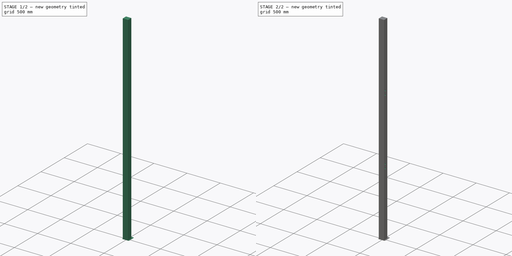
[diagram: build sequence overview — one tinted view per stage of 2, left to right]
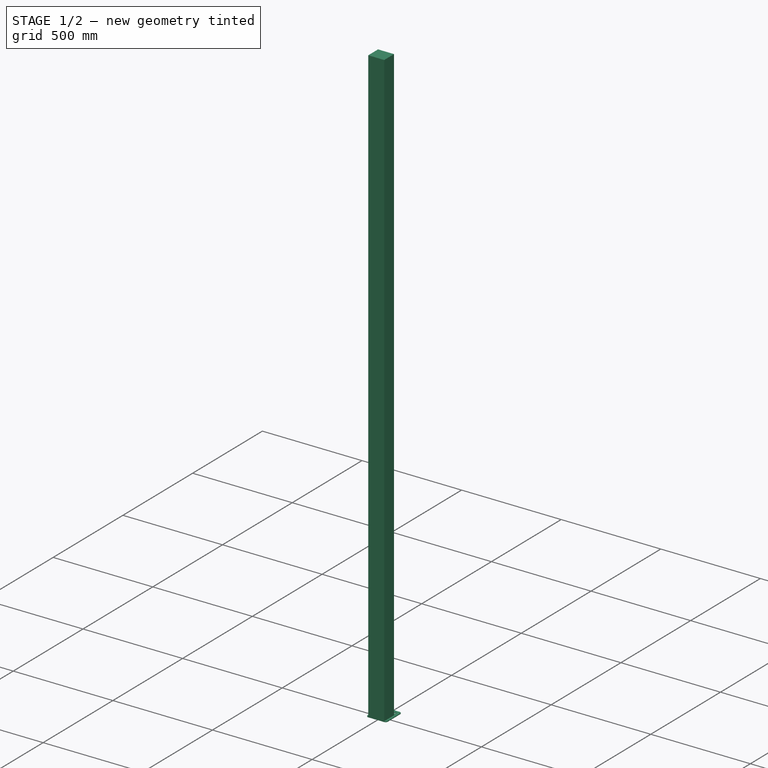
[diagram: stage 1 of 2 — iso view after this stage's code; geometry added in this stage tinted green]
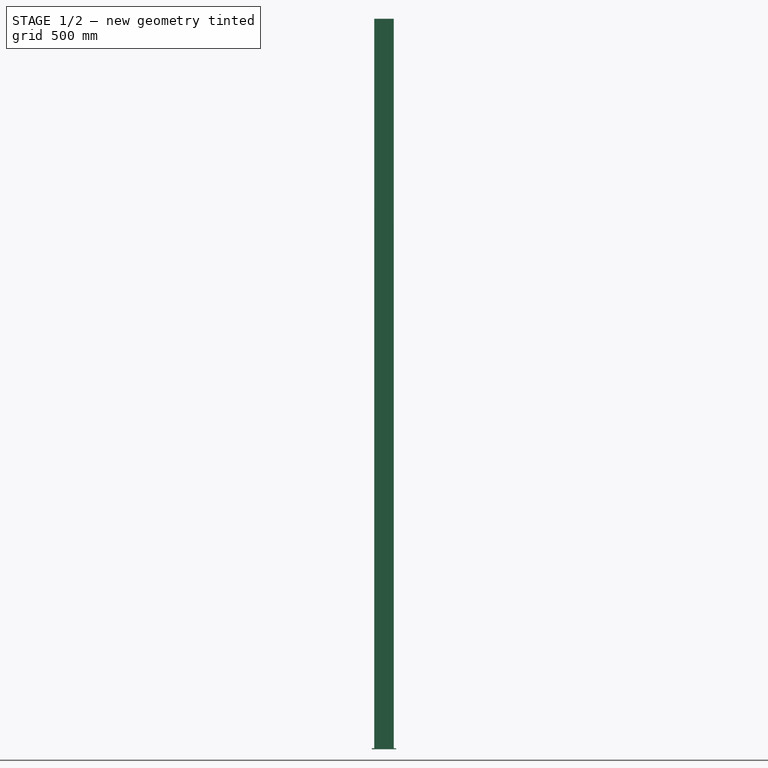
[diagram: stage 1 of 2 — front view after this stage's code; geometry added in this stage tinted green]
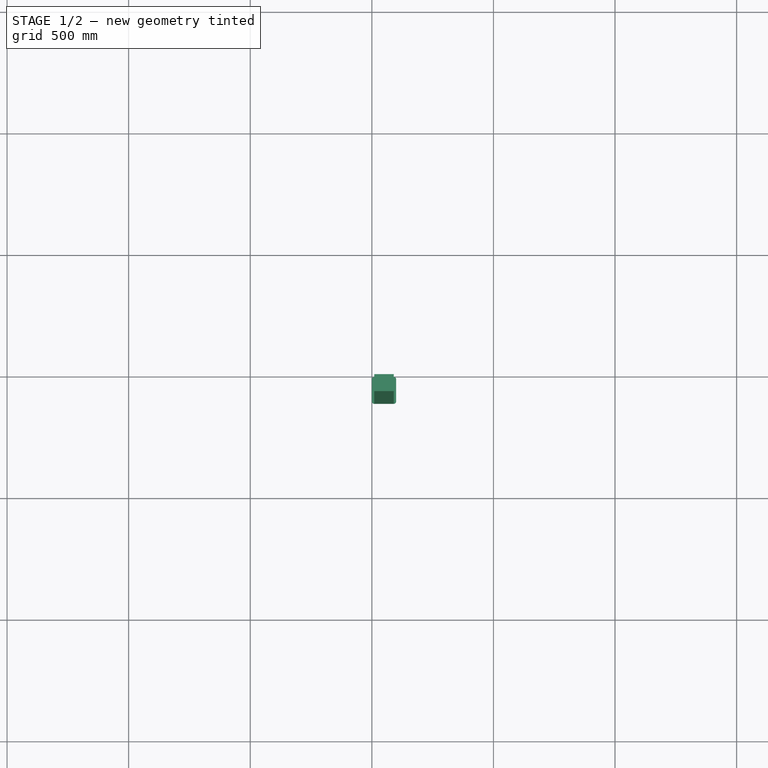
[diagram: stage 1 of 2 — top view after this stage's code; geometry added in this stage tinted green]
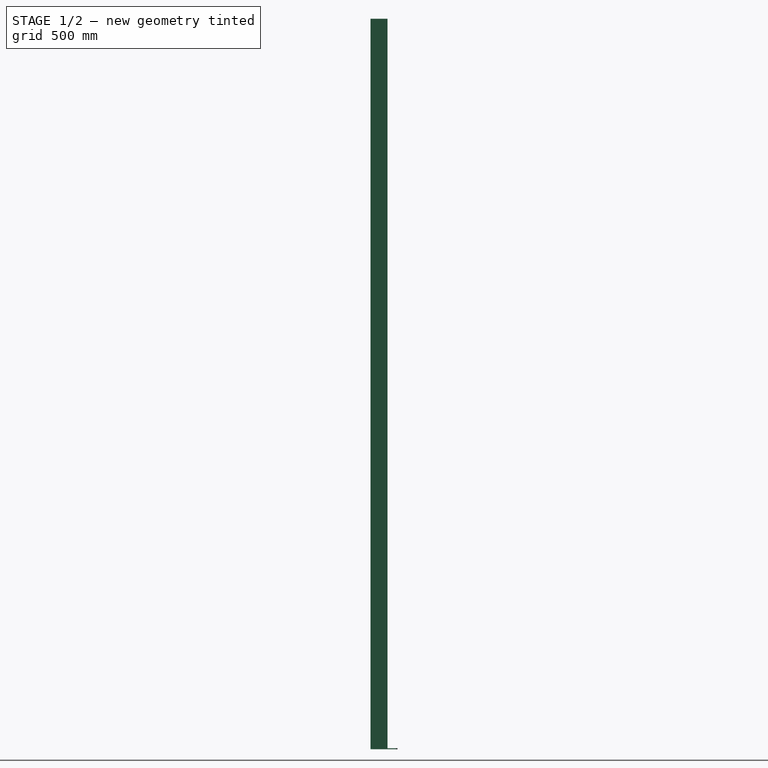
[diagram: stage 1 of 2 — right view after this stage's code; geometry added in this stage tinted green]
FCSTD DOCUMENT  (FreeCAD 0.21R33668 +26 (Git))
Label: stand_with_footplate
License: All rights reserved
LicenseURL: https://en.wikipedia.org/wiki/All_rights_reserved
objects: Sketcher::SketchObject×5, PartDesign::Pad×2, PartDesign::Pocket×2, PartDesign::Body×1
note: 14 computed .brp shape members not serialized (recipe doc carries the construction recipe); baked Part::Feature solids carry a one-line shape summary decoded from their .brp

FEATURE [Sketcher::SketchObject] Sketch
  FullyConstrained = true
  MapMode = 5
  Support = -> [XY_Plane]
  sketch-geometry (15):
    g0: LineSegment StartX=10 StartY=-2.913e-13 StartZ=0 EndX=90 EndY=-2.913e-13 EndZ=0
    g1: LineSegment StartX=100 StartY=-10 StartZ=0 EndX=100 EndY=-101 EndZ=0
    g2: LineSegment StartX=90 StartY=-111 StartZ=0 EndX=10 EndY=-111 EndZ=0
    g3: LineSegment StartX=0 StartY=-101 StartZ=0 EndX=0 EndY=-10 EndZ=0
    g4: ArcOfCircle CenterX=10 CenterY=-10 CenterZ=0 NormalX=0 NormalY=0 NormalZ=1 AngleXU=0 Radius=10 StartAngle=1.5708 EndAngle=3.14159
    g5: GeomPoint X=0 Y=0 Z=0
    g6: ArcOfCircle CenterX=10 CenterY=-101 CenterZ=0 NormalX=0 NormalY=0 NormalZ=1 AngleXU=0 Radius=10 StartAngle=3.14159 EndAngle=4.71239
    g7: GeomPoint X=0 Y=-111 Z=0
    g8: ArcOfCircle CenterX=90 CenterY=-101 CenterZ=0 NormalX=0 NormalY=0 NormalZ=1 AngleXU=0 Radius=10 StartAngle=4.71239 EndAngle=6.28319
    g9: GeomPoint X=100 Y=-111 Z=0
    g10: ArcOfCircle CenterX=90 CenterY=-10 CenterZ=0 NormalX=0 NormalY=0 NormalZ=1 AngleXU=0 Radius=10 StartAngle=0 EndAngle=1.5708
    g11: GeomPoint X=100 Y=0 Z=0
    g12: Circle CenterX=20 CenterY=-20 CenterZ=0 NormalX=0 NormalY=0 NormalZ=1 AngleXU=0 Radius=6
    g13: Circle CenterX=50 CenterY=-20 CenterZ=0 NormalX=0 NormalY=0 NormalZ=1 AngleXU=0 Radius=6
    g14: Circle CenterX=80 CenterY=-20 CenterZ=0 NormalX=0 NormalY=0 NormalZ=1 AngleXU=0 Radius=6
  constraints (36):
    c: Horizontal(g0)
    c: Horizontal(g2)
    c: Vertical(g1)
    c: Vertical(g3)
    c: Coincident(g5,g-1)
    c: PointOnObject(g5,g0)
    c: PointOnObject(g5,g3)
    c: Tangent(g0,g4) = 1.5708
    c: Tangent(g3,g4) = 1.5708
    c: PointOnObject(g7,g3)
    c: PointOnObject(g7,g2)
    c: Tangent(g3,g6) = 1.5708
    c: Tangent(g2,g6) = 1.5708
    c: PointOnObject(g9,g2)
    c: PointOnObject(g9,g1)
    c: Tangent(g2,g8) = 1.5708
    c: Tangent(g1,g8) = 1.5708
    c: PointOnObject(g11,g1)
    c: PointOnObject(g11,g0)
    c: Tangent(g1,g10) = 1.5708
    c: Tangent(g0,g10) = 1.5708
    c: Equal(g4,g6)
    c: Equal(g4,g8)
    c: Equal(g4,g10)
    c: Radius(g4) = 10
    c: Distance(g5,g11) = 100
    c: Distance(g5,g7) = 111
    c: Equal(g12,g13)
    c: Equal(g12,g14)
    c: Diameter(g12) = 12
    c: Distance(g12,g0) = 20
    c: Distance(g13,g0) = 20
    c: Distance(g14,g0) = 20
    c: Distance(g14,g3) = 80
    c: Distance(g13,g3) = 50
    c: Distance(g12,g3) = 20
FEATURE [PartDesign::Pad] Pad
  Direction = (0,0,1)
  Length = 4
  Length2 = 10
  Profile = -> Sketch
  ReferenceAxis = -> Sketch [N_Axis]
  Type = 0
FEATURE [Sketcher::SketchObject] Sketch001
  ExternalGeometry = -> [Pad]
  FullyConstrained = true
  MapMode = 5
  Placement = pos=(0,0,4) rot=(0,0,1;0rad)
  Support = -> [Pad]
  sketch-geometry (4):
    g0: LineSegment StartX=10 StartY=-41 StartZ=0 EndX=90 EndY=-41 EndZ=0
    g1: LineSegment StartX=90 StartY=-41 StartZ=0 EndX=90 EndY=-111 EndZ=0
    g2: LineSegment StartX=90 StartY=-111 StartZ=0 EndX=10 EndY=-111 EndZ=0
    g3: LineSegment StartX=10 StartY=-111 StartZ=0 EndX=10 EndY=-41 EndZ=0
  constraints (12):
    c: Coincident(g0,g1)
    c: Coincident(g1,g2)
    c: Coincident(g2,g3)
    c: Coincident(g3,g0)
    c: Horizontal(g0)
    c: Horizontal(g2)
    c: Vertical(g1)
    c: Vertical(g3)
    c: Distance(g1,g-3) = 10
    c: DistanceY(g-1,g0) = -41
    c: Distance(g3) = 70
    c: Distance(g0) = 80
FEATURE [PartDesign::Pad] Pad001
  BaseFeature = -> Pad
  Direction = (0,0,1)
  Length = 3000
  Length2 = 10
  Profile = -> Sketch001
  ReferenceAxis = -> Sketch001 [N_Axis]
  Type = 0
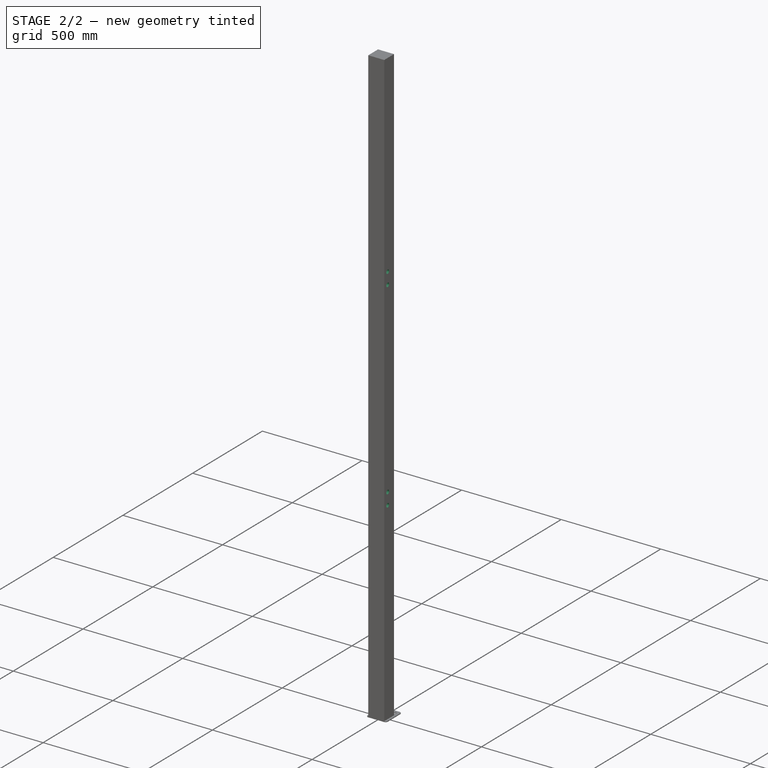
[diagram: stage 2 of 2 — iso view after this stage's code; geometry added in this stage tinted green]
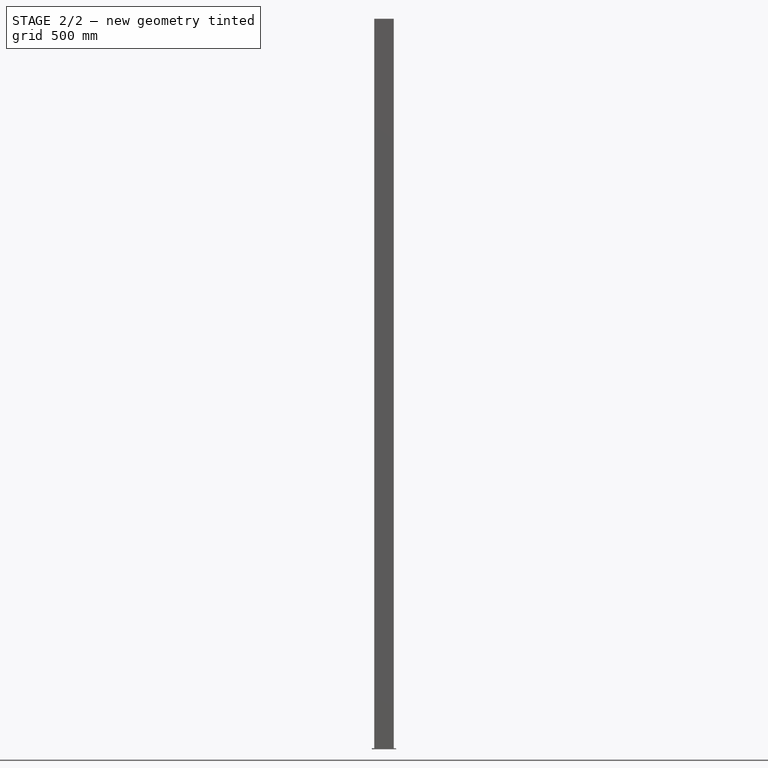
[diagram: stage 2 of 2 — front view after this stage's code; geometry added in this stage tinted green]
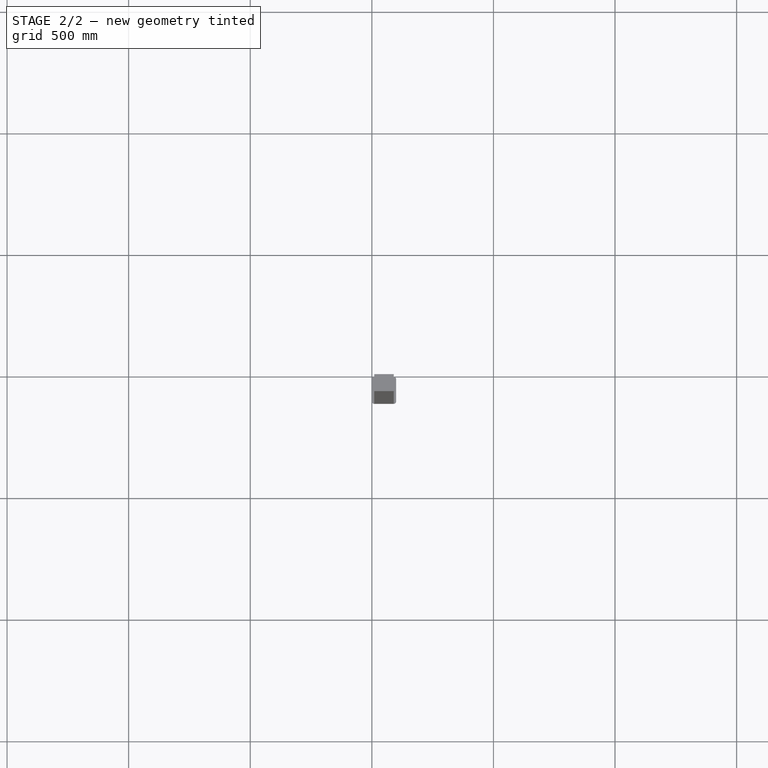
[diagram: stage 2 of 2 — top view after this stage's code; geometry added in this stage tinted green]
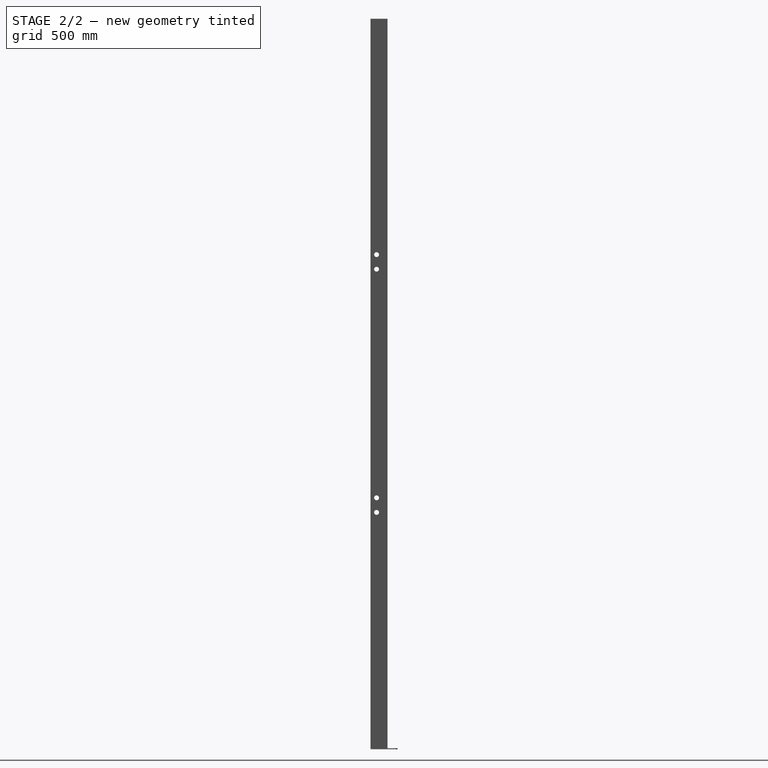
[diagram: stage 2 of 2 — right view after this stage's code; geometry added in this stage tinted green]
FEATURE [Sketcher::SketchObject] Sketch002
  ExternalGeometry = -> [Pad001]
  FullyConstrained = true
  MapMode = 5
  Placement = pos=(90,0,0) rot=(0.57735,0.57735,0.57735;2.0944rad)
  Support = -> [Pad001]
  sketch-geometry (4):
    g0: Circle CenterX=-86 CenterY=1034 CenterZ=0 NormalX=0 NormalY=0 NormalZ=1 AngleXU=0 Radius=10
    g1: Circle CenterX=-86 CenterY=974 CenterZ=0 NormalX=0 NormalY=0 NormalZ=1 AngleXU=0 Radius=10
    g2: Circle CenterX=-86 CenterY=2034 CenterZ=0 NormalX=0 NormalY=0 NormalZ=1 AngleXU=0 Radius=10
    g3: Circle CenterX=-86 CenterY=1974 CenterZ=0 NormalX=0 NormalY=0 NormalZ=1 AngleXU=0 Radius=10
  constraints (12):
    c: Distance(g0,g-7) = 1030
    c: Distance(g1,g-4) = 25
    c: Distance(g0,g-4) = 25
    c: Equal(g1,g0)
    c: Diameter(g1) = 20
    c: Distance(g0,g1) = 60
    c: Distance(g2,g-4) = 25
    c: Distance(g3,g-4) = 25
    c: Distance(g3,g2) = 60
    c: Equal(g2,g3)
    c: Diameter(g2) = 20
    c: Distance(g2,g1) = 1060
FEATURE [PartDesign::Pocket] Pocket
  BaseFeature = -> Pad001
  Direction = (-1,0,0)
  Length = 80
  Length2 = 5
  Profile = -> Sketch002
  ReferenceAxis = -> Sketch002 [N_Axis]
  Type = 0
FEATURE [Sketcher::SketchObject] Sketch003
  ExternalGeometry = -> [Pocket]
  FullyConstrained = true
  MapMode = 5
  Placement = pos=(10,0,0) rot=(0.57735,-0.57735,-0.57735;2.0944rad)
  Support = -> [Pocket]
  sketch-geometry (4):
    g0: Circle CenterX=66 CenterY=1034 CenterZ=0 NormalX=0 NormalY=0 NormalZ=1 AngleXU=0 Radius=10
    g1: Circle CenterX=66 CenterY=974 CenterZ=0 NormalX=0 NormalY=0 NormalZ=1 AngleXU=0 Radius=10
    g2: Circle CenterX=66 CenterY=2034 CenterZ=0 NormalX=0 NormalY=0 NormalZ=1 AngleXU=0 Radius=10
    g3: Circle CenterX=66 CenterY=1974 CenterZ=0 NormalX=0 NormalY=0 NormalZ=1 AngleXU=0 Radius=10
  constraints (12):
    c: Distance(g0,g-5) = 25
    c: Distance(g1,g-5) = 25
    c: Distance(g0,g-3) = 1030
    c: Distance(g0,g1) = 60
    c: Equal(g1,g0)
    c: Diameter(g1) = 20
    c: Distance(g2,g-5) = 25
    c: Distance(g3,g-5) = 25
    c: Distance(g2,g3) = 60
    c: Distance(g2,g1) = 1060
    c: Equal(g3,g2)
    c: Diameter(g3) = 20
FEATURE [Sketcher::SketchObject] Sketch004
  ExternalGeometry = -> [Pocket]
  FullyConstrained = true
  MapMode = 5
  Placement = pos=(0,-41,0) rot=(0,0.707107,0.707107;3.14159rad)
  Support = -> [Pocket]
  sketch-geometry (8):
    g0: LineSegment StartX=-50 StartY=3004 StartZ=0 EndX=-50 EndY=4 EndZ=0
    g1: Circle CenterX=-50 CenterY=214 CenterZ=0 NormalX=0 NormalY=0 NormalZ=1 AngleXU=0 Radius=5
    g2: Circle CenterX=-50 CenterY=634 CenterZ=0 NormalX=0 NormalY=0 NormalZ=1 AngleXU=0 Radius=5
    g3: Circle CenterX=-50 CenterY=1054 CenterZ=0 NormalX=0 NormalY=0 NormalZ=1 AngleXU=0 Radius=5
    g4: Circle CenterX=-50 CenterY=1474 CenterZ=0 NormalX=0 NormalY=0 NormalZ=1 AngleXU=0 Radius=5
    g5: Circle CenterX=-50 CenterY=1894 CenterZ=0 NormalX=0 NormalY=0 NormalZ=1 AngleXU=0 Radius=5
    g6: Circle CenterX=-50 CenterY=2314 CenterZ=0 NormalX=0 NormalY=0 NormalZ=1 AngleXU=0 Radius=5
    g7: Circle CenterX=-50 CenterY=2734 CenterZ=0 NormalX=0 NormalY=0 NormalZ=1 AngleXU=0 Radius=5
  constraints (20):
    c: PointOnObject(g0,g-6)
    c: PointOnObject(g0,g-3)
    c: Vertical(g0)
    c: PointOnObject(g1,g0)
    c: PointOnObject(g2,g0)
    c: PointOnObject(g3,g0)
    c: PointOnObject(g4,g0)
    c: PointOnObject(g5,g0)
    c: PointOnObject(g6,g0)
    c: PointOnObject(g7,g0)
    c: Equal(g1, g2-g7) x6
    c: Radius(g1) = 5
    c: Distance(g1,g-3) = 210
    c: Distance(g1,g2) = 420
    c: Distance(g2,g3) = 420
    c: DistanceY(g3,g4) = 420
    c: Distance(g4,g5) = 420
    c: Distance(g5,g6) = 420
    c: Distance(g7,g6) = 420
    c: Distance(g0,g-4) = 40
FEATURE [PartDesign::Pocket] Pocket001
  BaseFeature = -> Pocket
  Direction = (0,-1,2e-16)
  Length = 30
  Length2 = 5
  Profile = -> Sketch004
  ReferenceAxis = -> Sketch004 [N_Axis]
  Type = 0
FEATURE [PartDesign::Body] Body
  Group = -> [Sketch,Pad,Sketch001,Pad001,Sketch002,Pocket,Sketch003,Sketch004,Pocket001]
  Origin = -> Origin
  Tip = -> Pocket001
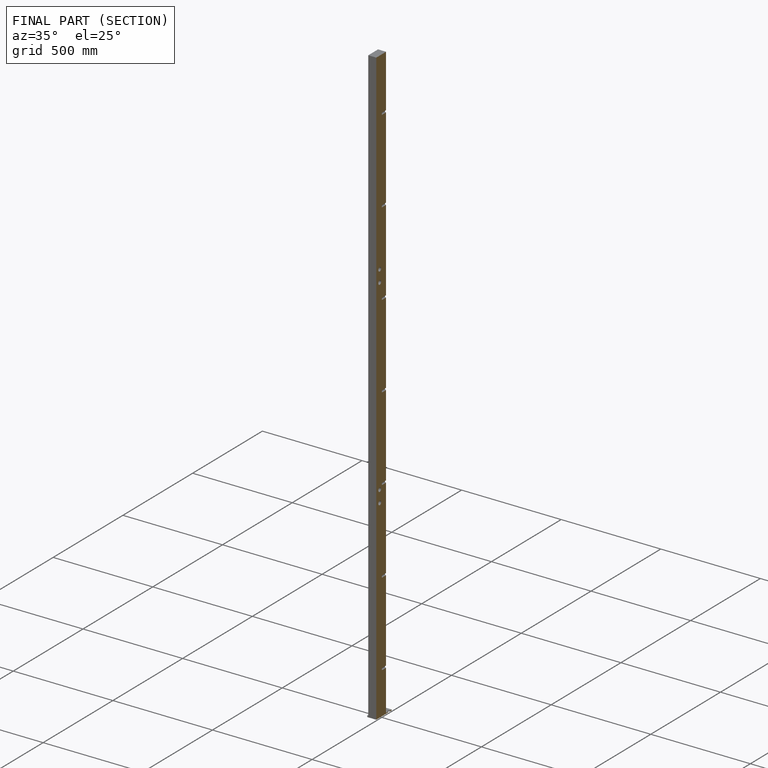
[diagram: finished part — half-section view (interior)]
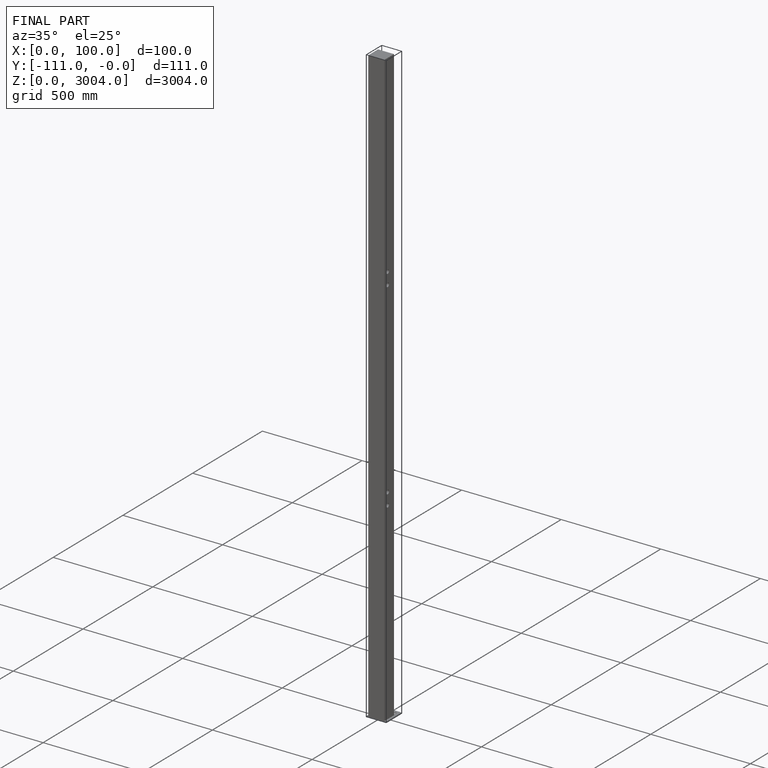
[diagram: finished part — iso view with bounding-box wireframe]
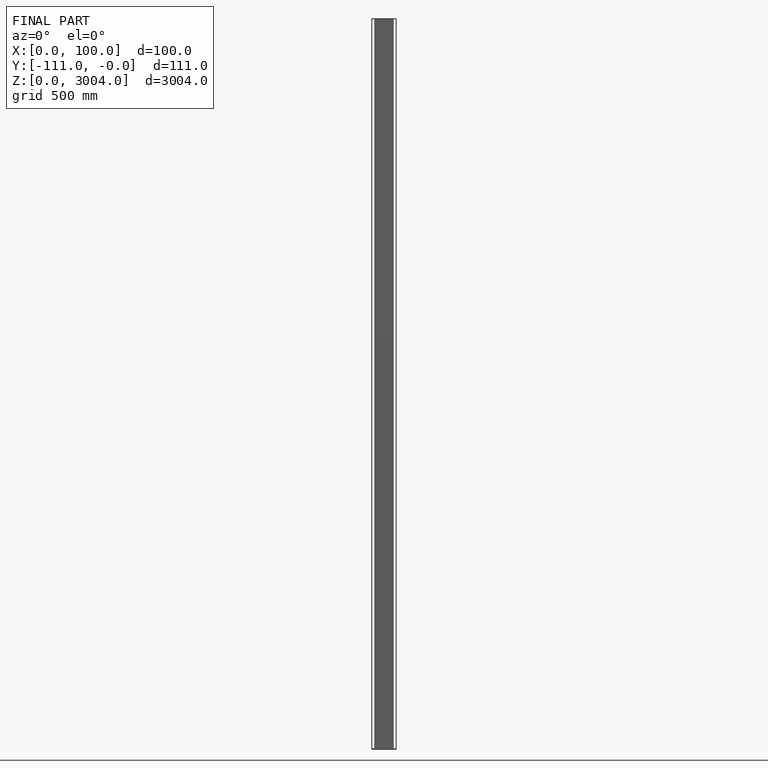
[diagram: finished part — front view with bounding-box wireframe]
